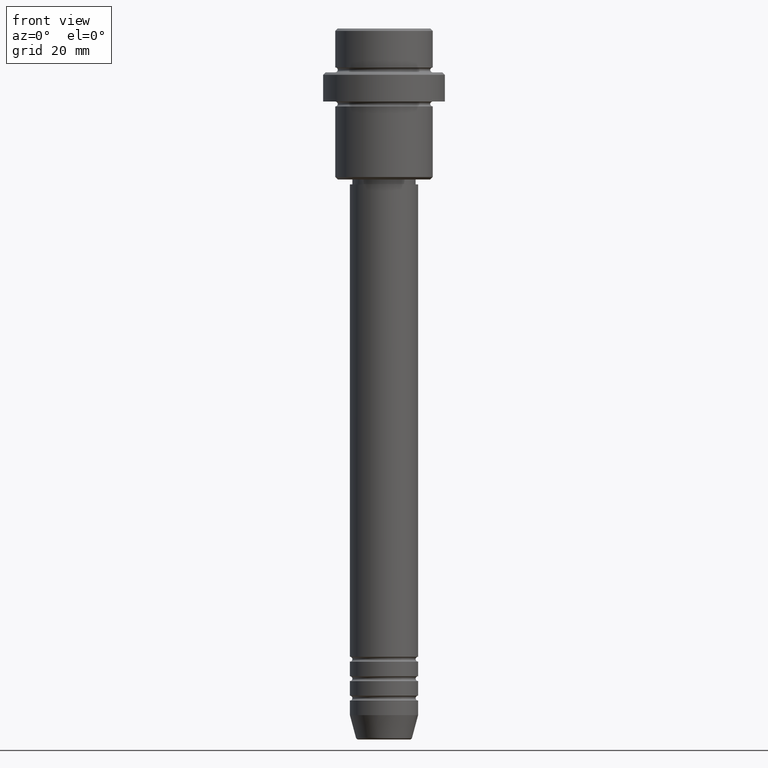
[diagram: clean part render]
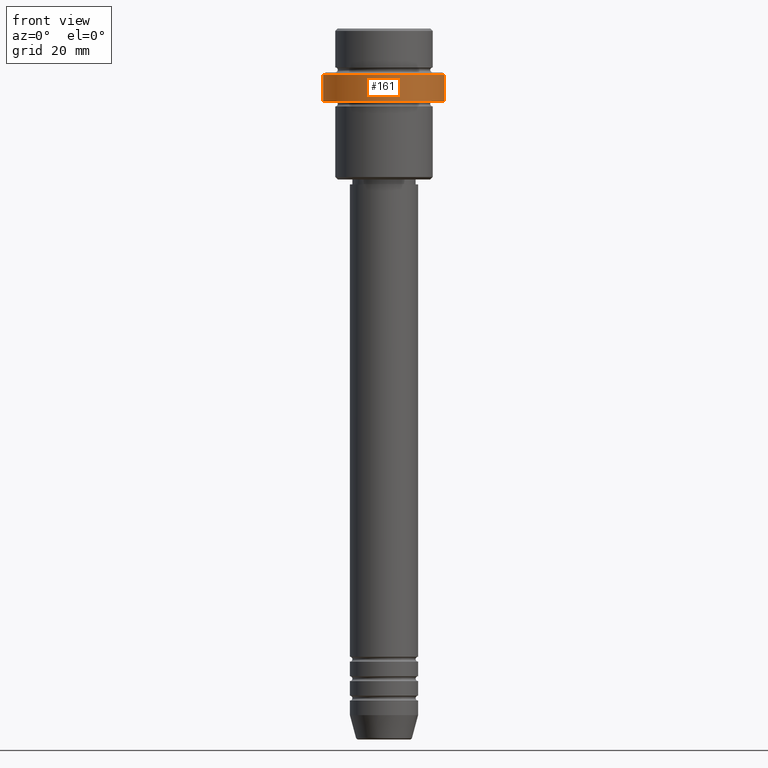
[diagram: same view with one face highlighted and labeled with its STEP entity id]
A machine part, front view. The second image highlights one B-rep face of the part: STEP entity #161.
In plain terms, the highlighted cylindrical surface (partial cylindrical patch) has radius 12.5 mm, axis along (-0, -0, 1).
Its self-contained STEP definition (entity closure, byte-faithful):
#75 = AXIS2_PLACEMENT_3D ( 'NONE', #673, #1213, #357 ) ;
#79 = VERTEX_POINT ( 'NONE', #751 ) ;
#82 = ORIENTED_EDGE ( 'NONE', *, *, #1210, .T. ) ;
#146 = DIRECTION ( 'NONE',  ( 1.000000000000000000, 0.000000000000000000, 0.000000000000000000 ) ) ;
#161 = ADVANCED_FACE ( 'NONE', ( #1222 ), #813, .T. ) ;
#326 = VECTOR ( 'NONE', #422, 1000.000000000000000 ) ;
#357 = DIRECTION ( 'NONE',  ( 1.000000000000000000, 0.000000000000000000, 0.000000000000000000 ) ) ;
#363 = ORIENTED_EDGE ( 'NONE', *, *, #1167, .T. ) ;
#422 = DIRECTION ( 'NONE',  ( -0.000000000000000000, -0.000000000000000000, 1.000000000000000000 ) ) ;
#496 = VERTEX_POINT ( 'NONE', #1277 ) ;
#673 = CARTESIAN_POINT ( 'NONE',  ( 0.000000000000000000, 0.000000000000000000, -15.00000000000000178 ) ) ;
#719 = CARTESIAN_POINT ( 'NONE',  ( 0.000000000000000000, 0.000000000000000000, -9.499999999999964473 ) ) ;
#747 = LINE ( 'NONE', #947, #963 ) ;
#751 = CARTESIAN_POINT ( 'NONE',  ( -12.50000000000000000, 1.530808498934191521E-15, -9.499999999999964473 ) ) ;
#753 = AXIS2_PLACEMENT_3D ( 'NONE', #1048, #1267, #146 ) ;
#813 = CYLINDRICAL_SURFACE ( 'NONE', #753, 12.50000000000000000 ) ;
#816 = ORIENTED_EDGE ( 'NONE', *, *, #1144, .F. ) ;
#853 = EDGE_CURVE ( 'NONE', #954, #496, #747, .T. ) ;
#866 = AXIS2_PLACEMENT_3D ( 'NONE', #719, #1161, #1286 ) ;
#947 = CARTESIAN_POINT ( 'NONE',  ( 12.50000000000000000, 0.000000000000000000, 0.000000000000000000 ) ) ;
#954 = VERTEX_POINT ( 'NONE', #1017 ) ;
#963 = VECTOR ( 'NONE', #1081, 1000.000000000000000 ) ;
#1011 = EDGE_LOOP ( 'NONE', ( #816, #82, #1025, #363 ) ) ;
#1017 = CARTESIAN_POINT ( 'NONE',  ( 12.50000000000000000, 0.000000000000000000, -15.00000000000000178 ) ) ;
#1025 = ORIENTED_EDGE ( 'NONE', *, *, #853, .T. ) ;
#1048 = CARTESIAN_POINT ( 'NONE',  ( 0.000000000000000000, 0.000000000000000000, 0.000000000000000000 ) ) ;
#1063 = CARTESIAN_POINT ( 'NONE',  ( -12.50000000000000000, 1.530808498934191521E-15, 0.000000000000000000 ) ) ;
#1081 = DIRECTION ( 'NONE',  ( -0.000000000000000000, -0.000000000000000000, 1.000000000000000000 ) ) ;
#1144 = EDGE_CURVE ( 'NONE', #1368, #79, #1260, .T. ) ;
#1161 = DIRECTION ( 'NONE',  ( 0.000000000000000000, 0.000000000000000000, -1.000000000000000000 ) ) ;
#1167 = EDGE_CURVE ( 'NONE', #496, #79, #1271, .T. ) ;
#1210 = EDGE_CURVE ( 'NONE', #1368, #954, #1383, .T. ) ;
#1213 = DIRECTION ( 'NONE',  ( -0.000000000000000000, -0.000000000000000000, 1.000000000000000000 ) ) ;
#1222 = FACE_OUTER_BOUND ( 'NONE', #1011, .T. ) ;
#1260 = LINE ( 'NONE', #1063, #326 ) ;
#1267 = DIRECTION ( 'NONE',  ( -0.000000000000000000, -0.000000000000000000, 1.000000000000000000 ) ) ;
#1271 = CIRCLE ( 'NONE', #866, 12.50000000000000000 ) ;
#1277 = CARTESIAN_POINT ( 'NONE',  ( 12.50000000000000000, 0.000000000000000000, -9.499999999999964473 ) ) ;
#1286 = DIRECTION ( 'NONE',  ( 1.000000000000000000, 0.000000000000000000, 0.000000000000000000 ) ) ;
#1367 = CARTESIAN_POINT ( 'NONE',  ( -12.50000000000000000, 1.530808498934191521E-15, -15.00000000000000178 ) ) ;
#1368 = VERTEX_POINT ( 'NONE', #1367 ) ;
#1383 = CIRCLE ( 'NONE', #75, 12.50000000000000000 ) ;